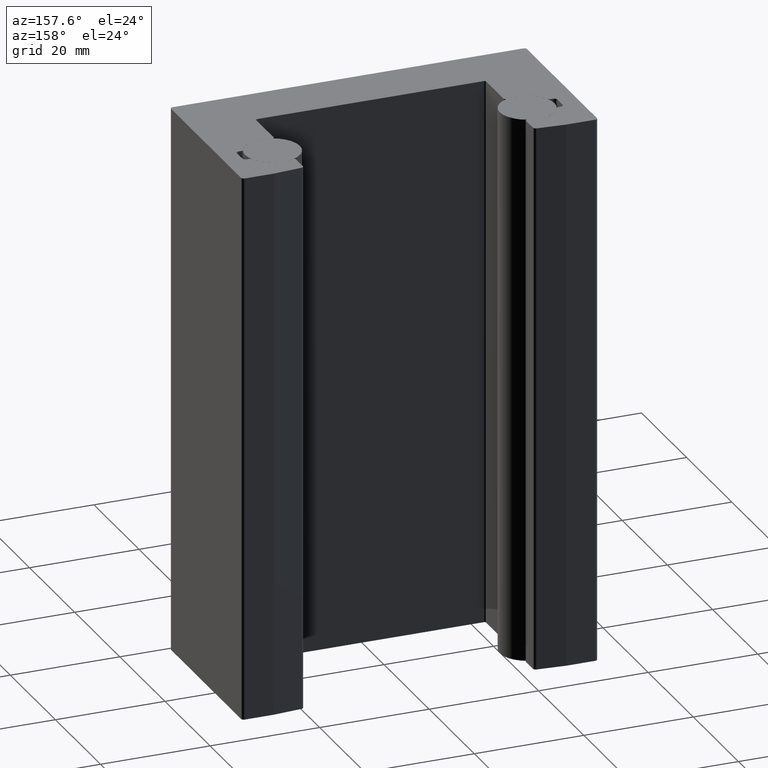
[diagram: clean part render]
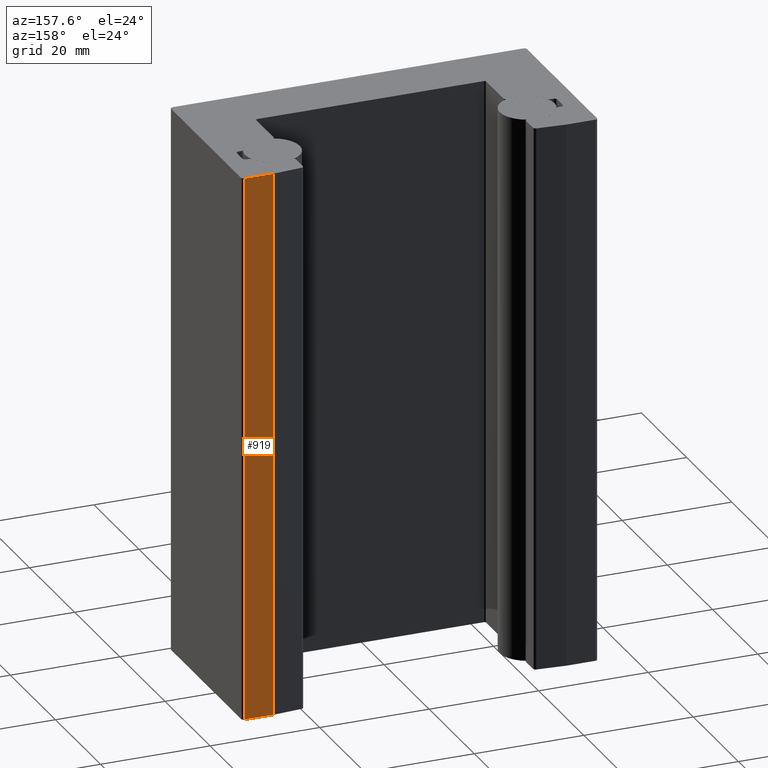
[diagram: same view with one face highlighted and labeled with its STEP entity id]
A machine part, auxiliary view. The second image highlights one B-rep face of the part: STEP entity #919.
In plain terms, the highlighted planar face has unit normal (-0, 1, 0).
Its self-contained STEP definition (entity closure, byte-faithful):
#44=PLANE('',#1086);
#83=FACE_OUTER_BOUND('',#132,.T.);
#132=EDGE_LOOP('',(#792,#793,#794,#795));
#209=LINE('',#1613,#290);
#210=LINE('',#1617,#291);
#211=LINE('',#1621,#292);
#218=LINE('',#1650,#299);
#290=VECTOR('',#1311,10.);
#291=VECTOR('',#1316,10.);
#292=VECTOR('',#1321,10.);
#299=VECTOR('',#1348,10.);
#439=VERTEX_POINT('',#1610);
#440=VERTEX_POINT('',#1612);
#441=VERTEX_POINT('',#1616);
#442=VERTEX_POINT('',#1620);
#556=EDGE_CURVE('',#439,#440,#209,.T.);
#558=EDGE_CURVE('',#440,#441,#210,.T.);
#560=EDGE_CURVE('',#441,#442,#211,.T.);
#576=EDGE_CURVE('',#442,#439,#218,.T.);
#792=ORIENTED_EDGE('',*,*,#558,.F.);
#793=ORIENTED_EDGE('',*,*,#556,.F.);
#794=ORIENTED_EDGE('',*,*,#576,.F.);
#795=ORIENTED_EDGE('',*,*,#560,.F.);
#919=ADVANCED_FACE('',(#83),#44,.T.);
#1086=AXIS2_PLACEMENT_3D('',#1649,#1346,#1347);
#1311=DIRECTION('',(1.,8.19857002800116E-16,0.));
#1316=DIRECTION('',(0.,0.,1.));
#1321=DIRECTION('',(-1.,-8.19857002800116E-16,0.));
#1346=DIRECTION('center_axis',(-8.19857002800116E-16,1.,0.));
#1347=DIRECTION('ref_axis',(-1.,-8.19857002800116E-16,0.));
#1348=DIRECTION('',(0.,0.,-1.));
#1610=CARTESIAN_POINT('',(26.7200000000001,16.,-3000.));
#1612=CARTESIAN_POINT('',(32.,16.,-3000.));
#1613=CARTESIAN_POINT('',(-8.55413725553088E-15,16.,-3000.));
#1616=CARTESIAN_POINT('',(32.,16.,-2900.));
#1617=CARTESIAN_POINT('',(32.,16.,0.));
#1620=CARTESIAN_POINT('',(26.7200000000001,16.,-2900.));
#1621=CARTESIAN_POINT('',(-8.55413725553088E-15,16.,-2900.));
#1649=CARTESIAN_POINT('Origin',(32.5,16.,0.));
#1650=CARTESIAN_POINT('',(26.7200000000001,16.,1500.));